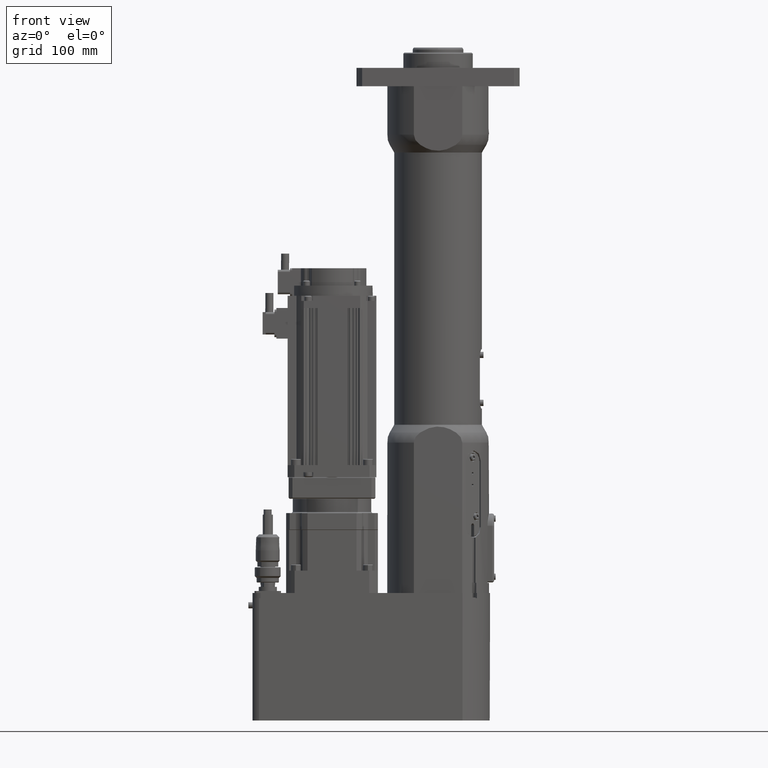
[diagram: clean part render]
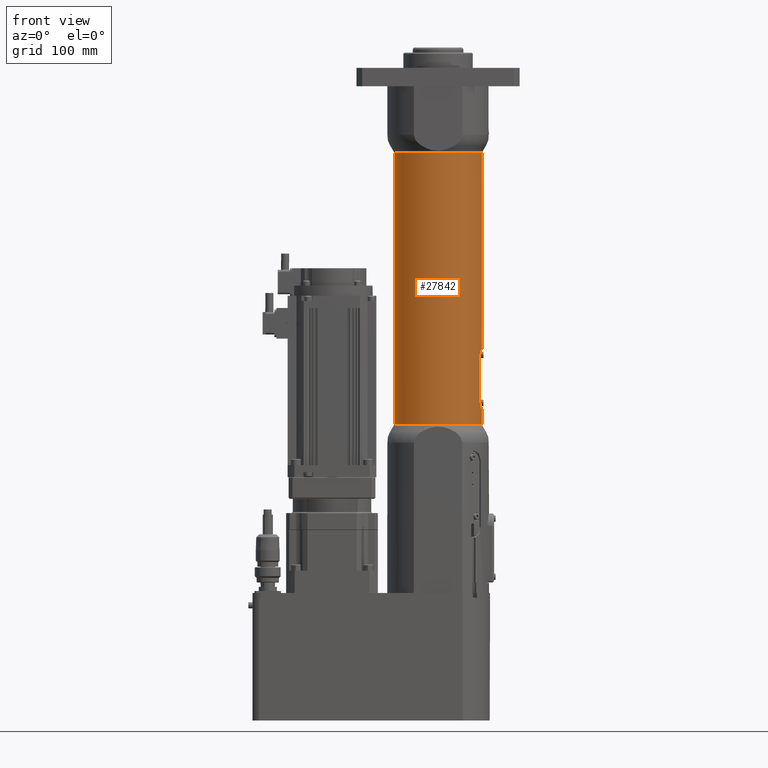
[diagram: same view with one face highlighted and labeled with its STEP entity id]
A machine part, front view. The second image highlights one B-rep face of the part: STEP entity #27842.
In plain terms, the highlighted cylindrical surface (bore or boss wall) has radius 43 mm, axis along (0, 0, -1).
Its self-contained STEP definition (entity closure, byte-faithful):
#1995=B_SPLINE_CURVE_WITH_KNOTS('',3,(#43886,#43887,#43888,#43889,#43890,
#43891,#43892,#43893,#43894,#43895),.UNSPECIFIED.,.F.,.F.,(4,2,2,2,4),(0.757214472182181,
0.950993686237801,1.14477290029342,1.3333383343958,1.52190376849818),
 .UNSPECIFIED.);
#1996=B_SPLINE_CURVE_WITH_KNOTS('',3,(#43899,#43900,#43901,#43902,#43903,
#43904,#43905,#43906,#43907,#43908),.UNSPECIFIED.,.F.,.F.,(4,2,2,2,4),(1.52190376849819,
1.71046920260057,1.89903463670295,2.09281385075857,2.28659306481419),
 .UNSPECIFIED.);
#1997=B_SPLINE_CURVE_WITH_KNOTS('',3,(#43912,#43913,#43914,#43915,#43916,
#43917,#43918,#43919,#43920,#43921),.UNSPECIFIED.,.F.,.F.,(4,2,2,2,4),(-0.764689296316001,
-0.570910082260381,-0.37713086820476,-0.18856543410238,0.),
 .UNSPECIFIED.);
#1998=B_SPLINE_CURVE_WITH_KNOTS('',3,(#43924,#43925,#43926,#43927,#43928,
#43929,#43930,#43931,#43932,#43933),.UNSPECIFIED.,.F.,.F.,(4,2,2,2,4),(0.,
0.188565434102376,0.377130868204753,0.570910082260372,0.764689296315991),
 .UNSPECIFIED.);
#3788=LINE('',#43897,#5641);
#3789=LINE('',#43923,#5642);
#5641=VECTOR('',#35063,48.);
#5642=VECTOR('',#35066,48.);
#7178=FACE_BOUND('',#10556,.T.);
#7179=FACE_BOUND('',#10557,.T.);
#7688=CYLINDRICAL_SURFACE('',#30202,43.);
#8636=FACE_OUTER_BOUND('',#10555,.T.);
#10555=EDGE_LOOP('',(#21901));
#10556=EDGE_LOOP('',(#21902,#21903,#21904,#21905,#21906,#21907,#21908,#21909));
#10557=EDGE_LOOP('',(#21910));
#12546=CIRCLE('',#30203,43.);
#12547=CIRCLE('',#30204,43.);
#12548=CIRCLE('',#30205,43.);
#12549=CIRCLE('',#30206,43.);
#14264=VERTEX_POINT('',#43880);
#14265=VERTEX_POINT('',#43882);
#14266=VERTEX_POINT('',#43883);
#14267=VERTEX_POINT('',#43885);
#14268=VERTEX_POINT('',#43896);
#14269=VERTEX_POINT('',#43898);
#14270=VERTEX_POINT('',#43909);
#14271=VERTEX_POINT('',#43911);
#14272=VERTEX_POINT('',#43922);
#14273=VERTEX_POINT('',#43934);
#17144=EDGE_CURVE('',#14264,#14264,#12546,.T.);
#17145=EDGE_CURVE('',#14265,#14266,#12547,.T.);
#17146=EDGE_CURVE('',#14266,#14267,#1995,.T.);
#17147=EDGE_CURVE('',#14267,#14268,#3788,.T.);
#17148=EDGE_CURVE('',#14268,#14269,#1996,.T.);
#17149=EDGE_CURVE('',#14269,#14270,#12548,.T.);
#17150=EDGE_CURVE('',#14270,#14271,#1997,.T.);
#17151=EDGE_CURVE('',#14271,#14272,#3789,.T.);
#17152=EDGE_CURVE('',#14272,#14265,#1998,.T.);
#17153=EDGE_CURVE('',#14273,#14273,#12549,.T.);
#21901=ORIENTED_EDGE('',*,*,#17144,.F.);
#21902=ORIENTED_EDGE('',*,*,#17145,.T.);
#21903=ORIENTED_EDGE('',*,*,#17146,.T.);
#21904=ORIENTED_EDGE('',*,*,#17147,.T.);
#21905=ORIENTED_EDGE('',*,*,#17148,.T.);
#21906=ORIENTED_EDGE('',*,*,#17149,.T.);
#21907=ORIENTED_EDGE('',*,*,#17150,.T.);
#21908=ORIENTED_EDGE('',*,*,#17151,.T.);
#21909=ORIENTED_EDGE('',*,*,#17152,.T.);
#21910=ORIENTED_EDGE('',*,*,#17153,.F.);
#27842=ADVANCED_FACE('',(#8636,#7178,#7179),#7688,.T.);
#30202=AXIS2_PLACEMENT_3D('',#43879,#35057,#35058);
#30203=AXIS2_PLACEMENT_3D('',#43881,#35059,#35060);
#30204=AXIS2_PLACEMENT_3D('',#43884,#35061,#35062);
#30205=AXIS2_PLACEMENT_3D('',#43910,#35064,#35065);
#30206=AXIS2_PLACEMENT_3D('',#43935,#35067,#35068);
#35057=DIRECTION('center_axis',(0.,0.,-1.));
#35058=DIRECTION('ref_axis',(-1.,0.,0.));
#35059=DIRECTION('center_axis',(0.,0.,-1.));
#35060=DIRECTION('ref_axis',(-1.,0.,0.));
#35061=DIRECTION('center_axis',(0.,0.,-1.));
#35062=DIRECTION('ref_axis',(-1.,0.,0.));
#35063=DIRECTION('',(0.,0.,1.));
#35064=DIRECTION('center_axis',(0.,0.,1.));
#35065=DIRECTION('ref_axis',(-1.,0.,0.));
#35066=DIRECTION('',(0.,0.,-1.));
#35067=DIRECTION('center_axis',(0.,0.,1.));
#35068=DIRECTION('ref_axis',(-1.,0.,0.));
#43879=CARTESIAN_POINT('Origin',(0.,0.,422.));
#43880=CARTESIAN_POINT('',(43.,-5.26598123633362E-15,155.));
#43881=CARTESIAN_POINT('Origin',(0.,0.,155.));
#43882=CARTESIAN_POINT('',(42.2492603485552,7.99999999999999,171.));
#43883=CARTESIAN_POINT('',(42.2492603485552,-7.99999999999998,171.));
#43884=CARTESIAN_POINT('Origin',(0.,0.,171.));
#43885=CARTESIAN_POINT('',(40.9878030638384,-13.,176.));
#43886=CARTESIAN_POINT('Ctrl Pts',(42.2492603485552,-7.99999999999998,171.));
#43887=CARTESIAN_POINT('Ctrl Pts',(42.1290871925517,-8.63465336936233,171.));
#43888=CARTESIAN_POINT('Ctrl Pts',(41.9851672615952,-9.30860759481386,171.12791025419));
#43889=CARTESIAN_POINT('Ctrl Pts',(41.6915196813124,-10.5461666990086,171.644917094142));
#43890=CARTESIAN_POINT('Ctrl Pts',(41.5425357641228,-11.1099853873031,172.033924012738));
#43891=CARTESIAN_POINT('Ctrl Pts',(41.2972154699089,-11.989273701273,172.923291648569));
#43892=CARTESIAN_POINT('Ctrl Pts',(41.183554128946,-12.3687009547752,173.479513063131));
#43893=CARTESIAN_POINT('Ctrl Pts',(41.0283540801929,-12.8741623656193,174.703488424883));
#43894=CARTESIAN_POINT('Ctrl Pts',(40.9878030638384,-13.,175.371448552992));
#43895=CARTESIAN_POINT('Ctrl Pts',(40.9878030638384,-13.,176.));
#43896=CARTESIAN_POINT('',(40.9878030638384,-13.,224.));
#43897=CARTESIAN_POINT('',(40.9878030638383,-13.0000000000002,422.));
#43898=CARTESIAN_POINT('',(42.2492603485552,-8.,229.));
#43899=CARTESIAN_POINT('Ctrl Pts',(40.9878030638384,-13.,224.));
#43900=CARTESIAN_POINT('Ctrl Pts',(40.9878030638384,-13.,224.628551447008));
#43901=CARTESIAN_POINT('Ctrl Pts',(41.0283540801929,-12.8741623656193,225.296511575117));
#43902=CARTESIAN_POINT('Ctrl Pts',(41.183554128946,-12.3687009547752,226.520486936869));
#43903=CARTESIAN_POINT('Ctrl Pts',(41.2972154699089,-11.989273701273,227.076708351431));
#43904=CARTESIAN_POINT('Ctrl Pts',(41.5425357641228,-11.1099853873031,227.966075987262));
#43905=CARTESIAN_POINT('Ctrl Pts',(41.6915196813124,-10.5461666990086,228.355082905858));
#43906=CARTESIAN_POINT('Ctrl Pts',(41.9851672615952,-9.30860759481388,228.87208974581));
#43907=CARTESIAN_POINT('Ctrl Pts',(42.1290871925517,-8.63465336936234,229.));
#43908=CARTESIAN_POINT('Ctrl Pts',(42.2492603485552,-7.99999999999999,229.));
#43909=CARTESIAN_POINT('',(42.2492603485552,8.,229.));
#43910=CARTESIAN_POINT('Origin',(0.,0.,229.));
#43911=CARTESIAN_POINT('',(40.9878030638384,13.,224.));
#43912=CARTESIAN_POINT('Ctrl Pts',(42.2492603485552,7.99999999999999,229.));
#43913=CARTESIAN_POINT('Ctrl Pts',(42.1290871925517,8.63465336936234,229.));
#43914=CARTESIAN_POINT('Ctrl Pts',(41.9851672615952,9.30860759481387,228.87208974581));
#43915=CARTESIAN_POINT('Ctrl Pts',(41.6915196813124,10.5461666990086,228.355082905858));
#43916=CARTESIAN_POINT('Ctrl Pts',(41.5425357641228,11.1099853873031,227.966075987262));
#43917=CARTESIAN_POINT('Ctrl Pts',(41.2972154699089,11.989273701273,227.076708351431));
#43918=CARTESIAN_POINT('Ctrl Pts',(41.183554128946,12.3687009547752,226.520486936869));
#43919=CARTESIAN_POINT('Ctrl Pts',(41.0283540801929,12.8741623656193,225.296511575117));
#43920=CARTESIAN_POINT('Ctrl Pts',(40.9878030638384,13.,224.628551447008));
#43921=CARTESIAN_POINT('Ctrl Pts',(40.9878030638384,13.,224.));
#43922=CARTESIAN_POINT('',(40.9878030638384,13.,176.));
#43923=CARTESIAN_POINT('',(40.9878030638383,13.0000000000002,422.));
#43924=CARTESIAN_POINT('Ctrl Pts',(40.9878030638384,13.,176.));
#43925=CARTESIAN_POINT('Ctrl Pts',(40.9878030638384,13.,175.371448552992));
#43926=CARTESIAN_POINT('Ctrl Pts',(41.0283540801929,12.8741623656192,174.703488424883));
#43927=CARTESIAN_POINT('Ctrl Pts',(41.183554128946,12.3687009547752,173.479513063131));
#43928=CARTESIAN_POINT('Ctrl Pts',(41.2972154699089,11.9892737012729,172.923291648569));
#43929=CARTESIAN_POINT('Ctrl Pts',(41.5425357641228,11.1099853873031,172.033924012738));
#43930=CARTESIAN_POINT('Ctrl Pts',(41.6915196813124,10.5461666990086,171.644917094142));
#43931=CARTESIAN_POINT('Ctrl Pts',(41.9851672615952,9.30860759481385,171.12791025419));
#43932=CARTESIAN_POINT('Ctrl Pts',(42.1290871925517,8.63465336936233,171.));
#43933=CARTESIAN_POINT('Ctrl Pts',(42.2492603485552,7.99999999999998,171.));
#43934=CARTESIAN_POINT('',(43.,-5.26598123633362E-15,422.));
#43935=CARTESIAN_POINT('Origin',(0.,0.,422.));